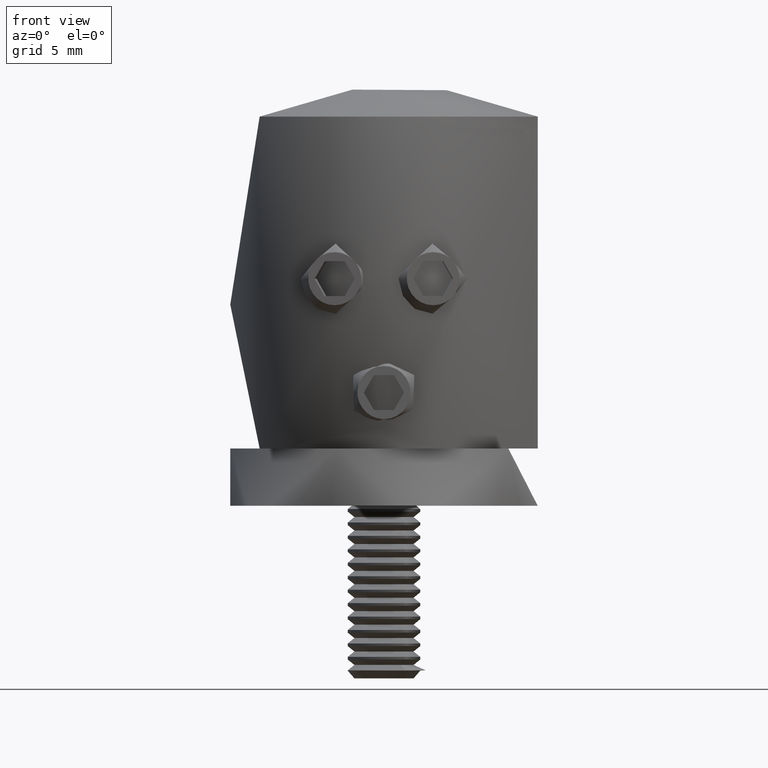
[diagram: clean part render]
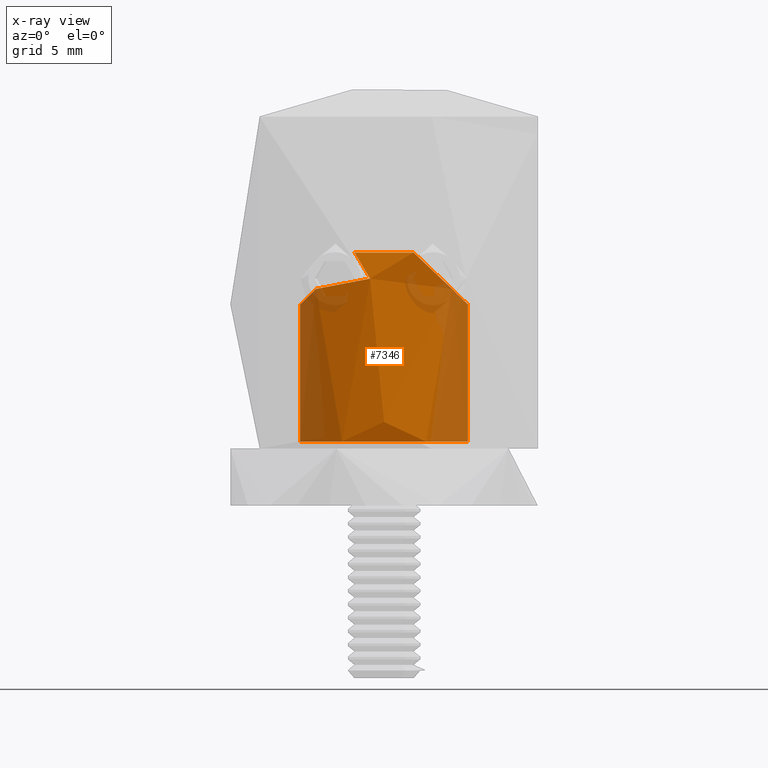
[diagram: x-ray — body ghosted, one internal face saturated and labeled with its STEP entity id]
A machine part, front view, then the same camera in x-ray: the body is ghosted and one INTERNAL B-rep face — a face not visible from any outside direction — is saturated and labeled: STEP entity #7346.
In plain terms, the highlighted cylindrical surface (bore or boss wall) has radius 6 mm, axis along (-0, -0, -1).
Its self-contained STEP definition (entity closure, byte-faithful):
#29 = CARTESIAN_POINT ( 'NONE',  ( -1.273687628927148400, -5.863772781199164000, 11.08677579669841200 ) ) ;
#625 = CARTESIAN_POINT ( 'NONE',  ( 4.867352433396872500, -3.508401386544241600, 11.40989782560572700 ) ) ;
#752 = CARTESIAN_POINT ( 'NONE',  ( 1.055318436482936700, -5.907600806349175400, 2.179273462287427700 ) ) ;
#936 = CARTESIAN_POINT ( 'NONE',  ( -2.086440083120673500, -5.625620362231071400, 3.724349182297993300 ) ) ;
#1004 = AXIS2_PLACEMENT_3D ( 'NONE', #16715, #3881, #3970 ) ;
#1017 = CARTESIAN_POINT ( 'NONE',  ( -1.388843066986826800, -5.837892061353310100, 2.418972633787931100 ) ) ;
#1131 = CARTESIAN_POINT ( 'NONE',  ( -4.867352433396882300, -3.508401386544229200, 11.40989782560571800 ) ) ;
#1174 = CARTESIAN_POINT ( 'NONE',  ( -2.502281604840251200, 5.458489792061498300, 13.66827881113174400 ) ) ;
#1232 = CARTESIAN_POINT ( 'NONE',  ( -2.113891818123934600, -5.615288183278637200, 14.01703155313980200 ) ) ;
#1287 = CARTESIAN_POINT ( 'NONE',  ( 1.388251816607981800, -5.838037281970530400, 5.581575950864485800 ) ) ;
#1375 = VERTEX_POINT ( 'NONE', #625 ) ;
#1636 = CARTESIAN_POINT ( 'NONE',  ( 5.171241224347185500, -3.055739607014682500, 11.11312757424906600 ) ) ;
#1818 = CARTESIAN_POINT ( 'NONE',  ( 5.941086143953244300, -0.8527237309210352600, 10.35793959269304800 ) ) ;
#1862 = CARTESIAN_POINT ( 'NONE',  ( 0.9996496144738772300, -5.916232734022180800, 11.94286512467448000 ) ) ;
#1905 = CARTESIAN_POINT ( 'NONE',  ( -1.167865313318375600, -5.885541250510717900, 13.00342245237259700 ) ) ;
#1991 = CARTESIAN_POINT ( 'NONE',  ( -1.728021608780151700, -5.747671505605956600, 10.53792556424895600 ) ) ;
#2075 = CARTESIAN_POINT ( 'NONE',  ( 0.9764022027134553500, -5.922589790551092500, 14.93394293131817500 ) ) ;
#2078 = CARTESIAN_POINT ( 'NONE',  ( -3.825067181792793900, -4.625897214471373300, 10.21465837091609400 ) ) ;
#2795 = CARTESIAN_POINT ( 'NONE',  ( 1.885684773470323500, -5.696257661656740200, 4.934537723020821600 ) ) ;
#2984 = CARTESIAN_POINT ( 'NONE',  ( 0.5472454995192380700, -5.976522812652007100, 1.967890563847576500 ) ) ;
#3069 = CARTESIAN_POINT ( 'NONE',  ( 1.283385613909028100, -5.862276931221736700, 5.667804354879554500 ) ) ;
#3226 = CARTESIAN_POINT ( 'NONE',  ( -5.167286748895363300, -3.062166583952993500, 11.11699470880214800 ) ) ;
#3251 = CARTESIAN_POINT ( 'NONE',  ( -0.2773106023340089500, -5.995110587510879400, 1.913857049664069200 ) ) ;
#3316 = CARTESIAN_POINT ( 'NONE',  ( -5.614912861048519900, 2.134467214609843100, 10.67839752558750100 ) ) ;
#3396 = CARTESIAN_POINT ( 'NONE',  ( -6.007766669316271900, 0.04580640826745665400, 10.29236098008397500 ) ) ;
#3430 = CARTESIAN_POINT ( 'NONE',  ( 0.2777402781516119000, -5.995120906657181300, 6.086177050655782800 ) ) ;
#3442 = CYLINDRICAL_SURFACE ( 'NONE', #10691, 6.000000000000000900 ) ;
#3493 = CARTESIAN_POINT ( 'NONE',  ( -5.824420193478872900, -1.472320762986534700, 10.47262690189751000 ) ) ;
#3577 = CARTESIAN_POINT ( 'NONE',  ( 5.247862996836683900, 2.921487359160314800, 11.03817719682752200 ) ) ;
#3665 = CARTESIAN_POINT ( 'NONE',  ( 5.709801124999731100, 1.867555025280693600, 10.58522462234058600 ) ) ;
#3881 = DIRECTION ( 'NONE',  ( 0.0000000000000000000, 0.0000000000000000000, -1.000000000000000000 ) ) ;
#3886 = CARTESIAN_POINT ( 'NONE',  ( 1.015730455365762200, -5.913413927067173500, 12.48225639932760000 ) ) ;
#3970 = DIRECTION ( 'NONE',  ( 1.000000000000000000, 0.0000000000000000000, 0.0000000000000000000 ) ) ;
#3974 = CARTESIAN_POINT ( 'NONE',  ( 1.065262837610819500, -5.904771308157386000, 11.58705933422035100 ) ) ;
#4110 = CARTESIAN_POINT ( 'NONE',  ( -4.589527053769453200, -3.866779937412136100, 10.85079736674343600 ) ) ;
#4203 = CARTESIAN_POINT ( 'NONE',  ( -2.161975072810344800, -5.599502737226383300, 10.25056775954835000 ) ) ;
#4289 = CARTESIAN_POINT ( 'NONE',  ( -3.952229512019090200, -4.517304475061483700, 10.27919822502627400 ) ) ;
#4473 = DIRECTION ( 'NONE',  ( -0.0000000000000000000, -0.0000000000000000000, -1.000000000000000000 ) ) ;
#4825 = CARTESIAN_POINT ( 'NONE',  ( 2.100097390676808600, -5.620461810260685800, 4.136718875267625600 ) ) ;
#5036 = ORIENTED_EDGE ( 'NONE', *, *, #6916, .T. ) ;
#5097 = CARTESIAN_POINT ( 'NONE',  ( 1.990963533487665200, -5.660313271408463200, 3.318295880892016200 ) ) ;
#5195 = CARTESIAN_POINT ( 'NONE',  ( 0.5499592264330737100, -5.976299791409975800, 6.031457407392960800 ) ) ;
#5250 = CARTESIAN_POINT ( 'NONE',  ( 0.1654252665690680900, 5.999751105303551500, 15.29864244186377100 ) ) ;
#5277 = CARTESIAN_POINT ( 'NONE',  ( -1.056301083882023900, -5.907416619898390800, 5.820119853568162000 ) ) ;
#5333 = CARTESIAN_POINT ( 'NONE',  ( -5.428965358528476100, -2.569834949775128100, 10.86078007065822100 ) ) ;
#5421 = CARTESIAN_POINT ( 'NONE',  ( -0.5938718101219150300, 5.972342731171290000, 15.15730686294952000 ) ) ;
#5452 = CARTESIAN_POINT ( 'NONE',  ( -0.1399303184415943700, -6.000000000000003600, 1.900000000000007500 ) ) ;
#5516 = CARTESIAN_POINT ( 'NONE',  ( -2.715608712263335900, 5.355579359399967200, 13.47097911774944900 ) ) ;
#5545 = CARTESIAN_POINT ( 'NONE',  ( -2.085970634324527700, -5.625794041661615500, 4.278667550940393300 ) ) ;
#5611 = CARTESIAN_POINT ( 'NONE',  ( -3.922828761886954400, 4.547107862393465500, 12.32614630466403400 ) ) ;
#5773 = FACE_OUTER_BOUND ( 'NONE', #25705, .T. ) ;
#5792 = CARTESIAN_POINT ( 'NONE',  ( 3.740224218944623800, 4.718724442483867200, 12.50253967566992900 ) ) ;
#5823 = CARTESIAN_POINT ( 'NONE',  ( 2.113891818123935000, -5.615288183278637200, 14.01703155313980200 ) ) ;
#5919 = CARTESIAN_POINT ( 'NONE',  ( 2.948008211115543900, -5.228933841009410200, 10.04554099241454100 ) ) ;
#6004 = CARTESIAN_POINT ( 'NONE',  ( 3.959424831206343600, -4.521295955666795800, 10.26370067353234300 ) ) ;
#6102 = CARTESIAN_POINT ( 'NONE',  ( 2.157701651782515800, -5.601162185523904200, 10.25263695343231900 ) ) ;
#6222 = CARTESIAN_POINT ( 'NONE',  ( 0.0000000000000000000, -6.000000000000000900, 1.900000000000006800 ) ) ;
#6244 = CARTESIAN_POINT ( 'NONE',  ( -1.065729928264619300, -5.904687732400111200, 11.58541812102071800 ) ) ;
#6327 = CARTESIAN_POINT ( 'NONE',  ( -1.559361361734893600, -5.795392785747755400, 13.59986148719090000 ) ) ;
#6424 = CARTESIAN_POINT ( 'NONE',  ( -1.963301222332455100, -5.671978457747179900, 13.93724219957108400 ) ) ;
#6692 = VERTEX_POINT ( 'NONE', #1232 ) ;
#6916 = EDGE_CURVE ( 'NONE', #7739, #7739, #10232, .T. ) ;
#7061 = CARTESIAN_POINT ( 'NONE',  ( 0.6812341139050355200, -5.962577447961941800, 2.008811109739972300 ) ) ;
#7248 = EDGE_CURVE ( 'NONE', #8938, #6692, #21468, .T. ) ;
#7346 = ADVANCED_FACE ( 'NONE', ( #25089, #23071, #5773 ), #3442, .F. ) ;
#7402 = CARTESIAN_POINT ( 'NONE',  ( 0.6085788465783628100, 5.970820826429176400, 15.14996537146061900 ) ) ;
#7431 = CARTESIAN_POINT ( 'NONE',  ( 0.1386258689238649400, -5.999981683544565800, 6.099947667266898000 ) ) ;
#7501 = CARTESIAN_POINT ( 'NONE',  ( -3.729517694690468200, 4.706423229901699500, 12.51208905756199400 ) ) ;
#7585 = CARTESIAN_POINT ( 'NONE',  ( -2.062532930482643900, 5.639368931949403100, 14.06442094693516700 ) ) ;
#7610 = CARTESIAN_POINT ( 'NONE',  ( -2.031781744484791200, -5.645590759985886100, 4.548445105721373100 ) ) ;
#7669 = CARTESIAN_POINT ( 'NONE',  ( -5.871928728444297400, 1.269909211819847400, 10.42594533236296600 ) ) ;
#7739 = VERTEX_POINT ( 'NONE', #6222 ) ;
#7766 = CARTESIAN_POINT ( 'NONE',  ( -5.023148013582693100, -3.292259641976961900, 11.25793460524902700 ) ) ;
#7877 = EDGE_CURVE ( 'NONE', #20018, #6692, #20620, .T. ) ;
#7943 = CARTESIAN_POINT ( 'NONE',  ( 5.551200053611353300, -2.295863394953066000, 10.74089553869716200 ) ) ;
#7980 = CARTESIAN_POINT ( 'NONE',  ( 1.368459074015935000, -5.843014417297395900, 10.93740862132601400 ) ) ;
#8072 = CARTESIAN_POINT ( 'NONE',  ( 1.821216476727798500, -5.718559615694504200, 13.83816000703656500 ) ) ;
#8129 = CARTESIAN_POINT ( 'NONE',  ( 4.867352433396872500, -3.508401386544241600, 11.40989782560572700 ) ) ;
#8170 = CARTESIAN_POINT ( 'NONE',  ( 1.558415985833064600, -5.795696088344937100, 13.59916312921229100 ) ) ;
#8302 = CARTESIAN_POINT ( 'NONE',  ( -1.016067671279336400, -5.913356428406748600, 12.48454089163752900 ) ) ;
#8927 = CARTESIAN_POINT ( 'NONE',  ( -5.421010862427522200E-017, -6.000000000000001800, 1.900000000000007200 ) ) ;
#8938 = VERTEX_POINT ( 'NONE', #1131 ) ;
#9396 = CARTESIAN_POINT ( 'NONE',  ( -0.9349122421464504100, -5.928103206872799900, 2.114551264284959300 ) ) ;
#9552 = CARTESIAN_POINT ( 'NONE',  ( -5.547154864501681700, -2.305190043185515200, 10.74486325882744000 ) ) ;
#9634 = CARTESIAN_POINT ( 'NONE',  ( -5.980725991670747800, -0.5712050354644056000, 10.31895753738725800 ) ) ;
#9658 = CARTESIAN_POINT ( 'NONE',  ( -0.1370357647622484900, -6.000018211104130500, 6.100052031729359400 ) ) ;
#9720 = CARTESIAN_POINT ( 'NONE',  ( -3.334412953283265100, 4.994137774525694500, 12.88932214460752400 ) ) ;
#9750 = CARTESIAN_POINT ( 'NONE',  ( -1.281623710314719200, -5.862660541099056200, 2.330856865501477400 ) ) ;
#9814 = CARTESIAN_POINT ( 'NONE',  ( -0.06878034496798497700, 6.000113663527448800, 15.30061995931117200 ) ) ;
#9904 = CARTESIAN_POINT ( 'NONE',  ( -5.943013178876668700, -0.8787453413953009200, 10.35605369826911800 ) ) ;
#10221 = CARTESIAN_POINT ( 'NONE',  ( 0.9898222461646819500, -5.917805721024223900, 12.12394212758456500 ) ) ;
#10232 = B_SPLINE_CURVE_WITH_KNOTS ( 'NONE', 3,
 ( #8927, #22041, #15713, #2984, #7061, #24096, #752, #11169, #19725, #15529, #23814, #5097, #15619, #24194, #13278, #4825, #11444, #21864, #23996, #2795, #11068, #25950, #13185, #1287, #3069, #20356, #16156, #20452, #5195, #3430, #7431, #9658, #26520, #18220, #11623, #17956, #5277, #18310, #20188, #26689, #20097, #26426, #7610, #5545, #22139, #24369, #936, #13652, #22488, #13746, #26783, #1017, #9750, #14008, #9396, #11794, #24465, #3251, #5452, #24283 ),
 .UNSPECIFIED., .T., .F.,
 ( 4, 2, 2, 2, 2, 2, 2, 2, 2, 2, 2, 2, 2, 2, 2, 2, 2, 2, 2, 2, 2, 2, 2, 2, 2, 2, 2, 2, 2, 4 ),
 ( 0.0000000000000000000, 0.0004135997285890928200, 0.0008271994571781854200, 0.001240799185767278200, 0.001654398914356370600, 0.002481598371534556400, 0.002895198100123648800, 0.003308797828712741300, 0.003722397557301833300, 0.004135997285890926100, 0.004549597014480017700, 0.004963196743069110200, 0.005376796471658201700, 0.005790396200247294200, 0.006203995928836386600, 0.006617595657425478200, 0.007031195386014570600, 0.007444795114603662200, 0.007858394843192756400, 0.008271994571781848800, 0.009099194028960033700, 0.009512793757549127900, 0.009926393486138223800, 0.01033999321472731600, 0.01075359294331641200, 0.01158079240049460000, 0.01199439212908369600, 0.01240799185767279400, 0.01282159158626188800, 0.01323519131485098400 ),
 .UNSPECIFIED. ) ;
#10273 = EDGE_LOOP ( 'NONE', ( #5036 ) ) ;
#10310 = CARTESIAN_POINT ( 'NONE',  ( 1.052194865084752600, -5.907309789545577900, 12.66220004238179400 ) ) ;
#10446 = CARTESIAN_POINT ( 'NONE',  ( -0.8107541114038041600, -5.948034349896200700, 15.04353885490867500 ) ) ;
#10497 = CARTESIAN_POINT ( 'NONE',  ( 2.470280173078289300, -5.470503643463204400, 10.12825927991102400 ) ) ;
#10573 = ORIENTED_EDGE ( 'NONE', *, *, #12771, .T. ) ;
#10691 = AXIS2_PLACEMENT_3D ( 'NONE', #15081, #4473, #17147 ) ;
#10718 = CARTESIAN_POINT ( 'NONE',  ( -2.113891818123934600, -5.615288183278637200, 14.01703155313980200 ) ) ;
#11068 = CARTESIAN_POINT ( 'NONE',  ( 1.820638573103270200, -5.717652440165352300, 5.055379003986187700 ) ) ;
#11169 = CARTESIAN_POINT ( 'NONE',  ( 1.282773082496065000, -5.862417377531365900, 2.331696866173552900 ) ) ;
#11444 = CARTESIAN_POINT ( 'NONE',  ( 2.086195265504057000, -5.625710555255438700, 4.277106224398222500 ) ) ;
#11596 = CARTESIAN_POINT ( 'NONE',  ( -3.131703652343030600, 5.123396645473863300, 13.08153643734966600 ) ) ;
#11623 = CARTESIAN_POINT ( 'NONE',  ( -0.6799031944775879600, -5.962726470154970900, 5.991631115680869300 ) ) ;
#11677 = CARTESIAN_POINT ( 'NONE',  ( -0.1475560798597540200, 5.998668804433220800, 15.29265606429402500 ) ) ;
#11726 = EDGE_CURVE ( 'NONE', #8938, #1375, #17903, .T. ) ;
#11794 = CARTESIAN_POINT ( 'NONE',  ( -0.6805891605157771100, -5.962656029525707200, 2.008574322222096000 ) ) ;
#11857 = CARTESIAN_POINT ( 'NONE',  ( 2.719334512010128000, 5.353746618275196500, 13.46753091479247100 ) ) ;
#12028 = CARTESIAN_POINT ( 'NONE',  ( 5.867320275194417800, 1.290016840119474000, 10.43047480805269000 ) ) ;
#12167 = CARTESIAN_POINT ( 'NONE',  ( 1.963138673634825500, -5.672039649684394100, 13.93715607430250700 ) ) ;
#12214 = CARTESIAN_POINT ( 'NONE',  ( 4.803616095281046100, 3.604722715197932200, 11.47219594789762800 ) ) ;
#12303 = CARTESIAN_POINT ( 'NONE',  ( 4.292914315752991400, 4.199380438900682600, 11.96865220668319400 ) ) ;
#12332 = CARTESIAN_POINT ( 'NONE',  ( 3.550931751642631500, -4.839491112023222500, 10.11426778605473900 ) ) ;
#12376 = CARTESIAN_POINT ( 'NONE',  ( 0.4107333692984690400, -5.986808937702580400, 15.22999402726550100 ) ) ;
#12483 = CARTESIAN_POINT ( 'NONE',  ( -0.9897773490152483900, -5.917813663961949200, 12.12567396715467900 ) ) ;
#12652 = CARTESIAN_POINT ( 'NONE',  ( -2.631461423441610900, -5.395133144000613600, 10.08705352124343300 ) ) ;
#12747 = CARTESIAN_POINT ( 'NONE',  ( -4.747180099970179000, -3.671515594424438400, 11.11045017589024500 ) ) ;
#12771 = EDGE_CURVE ( 'NONE', #20018, #1375, #17378, .T. ) ;
#13185 = CARTESIAN_POINT ( 'NONE',  ( 1.581278183707604900, -5.788737489101017700, 5.388590976637336100 ) ) ;
#13278 = CARTESIAN_POINT ( 'NONE',  ( 2.099901555218821200, -5.620534980703876500, 3.860305477660864500 ) ) ;
#13652 = CARTESIAN_POINT ( 'NONE',  ( -2.032103204105485200, -5.645475466979344300, 3.452485469036112400 ) ) ;
#13715 = CARTESIAN_POINT ( 'NONE',  ( -1.835604237810706300, 5.717506295038042200, 14.26416947901370600 ) ) ;
#13718 = ORIENTED_EDGE ( 'NONE', *, *, #7877, .F. ) ;
#13746 = CARTESIAN_POINT ( 'NONE',  ( -1.833295944888411600, -5.714140928245533300, 2.939791683323970800 ) ) ;
#13897 = CARTESIAN_POINT ( 'NONE',  ( -5.744345981486620000, -1.757076398721709500, 10.55131166622664200 ) ) ;
#13983 = CARTESIAN_POINT ( 'NONE',  ( -0.3742279772383637100, 5.988768135218638400, 15.24006586158862200 ) ) ;
#14008 = CARTESIAN_POINT ( 'NONE',  ( -1.054979748196500600, -5.907653145361193100, 2.179116733785587000 ) ) ;
#14075 = CARTESIAN_POINT ( 'NONE',  ( -5.928877749803342000, 0.9708895376434503200, 10.36994583881917400 ) ) ;
#14174 = CARTESIAN_POINT ( 'NONE',  ( 5.434683667475770400, -2.558025367493085500, 10.85517621458484100 ) ) ;
#14264 = CARTESIAN_POINT ( 'NONE',  ( 5.749431440263746800, -1.740933335084042600, 10.54631712893359300 ) ) ;
#14350 = CARTESIAN_POINT ( 'NONE',  ( 5.830234072905751600, -1.449169544467736600, 10.46691350662779000 ) ) ;
#14390 = CARTESIAN_POINT ( 'NONE',  ( 3.404905387312053400, -4.943556201823896300, 10.07913213844010500 ) ) ;
#14491 = CARTESIAN_POINT ( 'NONE',  ( 4.867352433396872500, -3.508401386544241600, 11.40989782560572700 ) ) ;
#14530 = CARTESIAN_POINT ( 'NONE',  ( -2.113891818123934600, -5.615288183278637200, 14.01703155313980200 ) ) ;
#14538 = CARTESIAN_POINT ( 'NONE',  ( 3.346569586699718700, 5.002999516788536400, 12.88035413875520500 ) ) ;
#14575 = CARTESIAN_POINT ( 'NONE',  ( 1.271779074911123700, -5.864178374686136200, 11.09026145185682200 ) ) ;
#14656 = CARTESIAN_POINT ( 'NONE',  ( 2.005322469550398600, -5.656893044782796300, 10.33631424745069600 ) ) ;
#14703 = CARTESIAN_POINT ( 'NONE',  ( 0.7983218766900320700, -5.949766816213366600, 15.05121956207199900 ) ) ;
#14809 = CARTESIAN_POINT ( 'NONE',  ( -1.051498570073583700, -5.907440728322941800, 12.66013789724735800 ) ) ;
#14888 = CARTESIAN_POINT ( 'NONE',  ( 1.490075256485623200, -5.822490883155095000, 14.56310791316861900 ) ) ;
#15081 = CARTESIAN_POINT ( 'NONE',  ( 0.0000000000000000000, 0.0000000000000000000, 16.39999999999999900 ) ) ;
#15529 = CARTESIAN_POINT ( 'NONE',  ( 1.677500159237451200, -5.764135783203782300, 2.707802910303008600 ) ) ;
#15619 = CARTESIAN_POINT ( 'NONE',  ( 2.031893931028322200, -5.645550960297868800, 3.451744546214746900 ) ) ;
#15713 = CARTESIAN_POINT ( 'NONE',  ( 0.2773110508732141700, -5.995114773543329000, 1.913844450117064800 ) ) ;
#15872 = CARTESIAN_POINT ( 'NONE',  ( -0.7299336915313289200, 5.956905625944996200, 15.08388537916767200 ) ) ;
#16034 = CARTESIAN_POINT ( 'NONE',  ( -4.867352433396882300, -3.508401386544229200, 11.40989782560571800 ) ) ;
#16128 = CARTESIAN_POINT ( 'NONE',  ( -5.384272730743789200, 2.663231850286636800, 10.90455813632185100 ) ) ;
#16156 = CARTESIAN_POINT ( 'NONE',  ( 0.9337857770029868200, -5.928263369488840700, 5.885943294885849200 ) ) ;
#16397 = CARTESIAN_POINT ( 'NONE',  ( 5.976964298272593000, -0.5473025747463038400, 10.32265752005877200 ) ) ;
#16542 = CARTESIAN_POINT ( 'NONE',  ( 4.814326353859881300, -3.581966691317782600, 11.25260326226228500 ) ) ;
#16590 = CARTESIAN_POINT ( 'NONE',  ( 5.023825250908378900, -3.291320082222535200, 11.25727402704241000 ) ) ;
#16626 = CARTESIAN_POINT ( 'NONE',  ( 1.724931855367855200, -5.748596978509878500, 10.54057491809329900 ) ) ;
#16667 = CARTESIAN_POINT ( 'NONE',  ( -1.497742597307091900, -5.820339371575646400, 14.55645797503656900 ) ) ;
#16671 = CARTESIAN_POINT ( 'NONE',  ( -2.473768912098433400, -5.468915293656901400, 10.12724914331903900 ) ) ;
#16715 = CARTESIAN_POINT ( 'NONE',  ( 0.0000000000000000000, 0.0000000000000000000, 0.5000000000000073300 ) ) ;
#16719 = CARTESIAN_POINT ( 'NONE',  ( 1.593628327054531700, -5.785658689657656100, 10.66394320091266200 ) ) ;
#16862 = CARTESIAN_POINT ( 'NONE',  ( -4.867352433396882300, -3.508401386544229200, 11.40989782560571800 ) ) ;
#16957 = CARTESIAN_POINT ( 'NONE',  ( -1.370049457579461500, -5.842655812519130800, 10.93501073409079700 ) ) ;
#17039 = CARTESIAN_POINT ( 'NONE',  ( 0.2052556779809838700, -5.997370529145861400, 15.28539604839988900 ) ) ;
#17123 = CARTESIAN_POINT ( 'NONE',  ( 6.000000000000000900, 0.0000000000000000000, 0.5000000000000073300 ) ) ;
#17147 = DIRECTION ( 'NONE',  ( -1.000000000000000000, 0.0000000000000000000, 0.0000000000000000000 ) ) ;
#17378 = B_SPLINE_CURVE_WITH_KNOTS ( 'NONE', 3,
 ( #26884, #12167, #8072, #8170, #18959, #22940, #23036, #10310, #3886, #10221, #1862, #3974, #25104, #14575, #7980, #16719, #16626, #14656, #6102, #10497, #27441, #5919, #18873, #14390, #12332, #6004, #20992, #27253, #25374, #25001, #16542, #14491 ),
 .UNSPECIFIED., .F., .F.,
 ( 4, 2, 2, 2, 2, 2, 2, 2, 2, 2, 2, 2, 2, 2, 2, 4 ),
 ( 0.004769255954720246500, 0.005305575705321788700, 0.005841895455923330100, 0.006378215206524871400, 0.006914534957126413700, 0.007450854707727955900, 0.007987174458329497300, 0.008523494208931038700, 0.009059813959532581800, 0.009596133710134123100, 0.01013245346073566400, 0.01066877321133720600, 0.01120509296193874700, 0.01227773246314183000, 0.01281405221374337700, 0.01335037196434492000 ),
 .UNSPECIFIED. ) ;
#17903 = B_SPLINE_CURVE_WITH_KNOTS ( 'NONE', 3,
 ( #16034, #7766, #3226, #5333, #9552, #13897, #3493, #9904, #9634, #3396, #26752, #14075, #7669, #18282, #3316, #16128, #18371, #20246, #26850, #5611, #7501, #9720, #11596, #5516, #1174, #7585, #13715, #18010, #20419, #15872, #5421, #13983, #22546, #11677, #9814, #5250, #20164, #7402, #22284, #22368, #24434, #22458, #26580, #24608, #11857, #14538, #5792, #12303, #20785, #12214, #20687, #3577, #25060, #27217, #3665, #12028, #20876, #27124, #20600, #24963, #16397, #1818, #22905, #14350, #14264, #7943, #14174, #1636, #16590, #8129 ),
 .UNSPECIFIED., .F., .F.,
 ( 4, 2, 2, 2, 2, 2, 2, 2, 2, 2, 2, 2, 2, 2, 2, 2, 2, 2, 2, 2, 2, 2, 2, 2, 2, 2, 2, 2, 2, 2, 2, 2, 2, 2, 4 ),
 ( 0.03959294493710817400, 0.04051882985648759500, 0.04144471477586701000, 0.04237059969524643200, 0.04329648461462585300, 0.04422236953400526800, 0.04514825445338469000, 0.04607413937276410400, 0.04700002429214352600, 0.04885179413090236200, 0.04977767905028178400, 0.05070356396966120600, 0.05162944888904062700, 0.05255533380842004900, 0.05348121872779947100, 0.05394416118748918100, 0.05417563241733403700, 0.05440710364717889200, 0.05487004610686860300, 0.05533298856655831400, 0.05625887348593774200, 0.05718475840531716400, 0.05811064332469658600, 0.05996241316345542200, 0.06088829808283485100, 0.06181418300221427200, 0.06274006792159370100, 0.06366595284097312200, 0.06459183776035254400, 0.06551772267973196600, 0.06598066513942167600, 0.06644360759911138700, 0.06736949251849080900, 0.06829537743787023100, 0.06922126235724965200 ),
 .UNSPECIFIED. ) ;
#17956 = CARTESIAN_POINT ( 'NONE',  ( -0.9335114993840605300, -5.928316084038139700, 5.886112174640410400 ) ) ;
#18010 = CARTESIAN_POINT ( 'NONE',  ( -1.366144347021675200, 5.847475589925021000, 14.65109191968039100 ) ) ;
#18220 = CARTESIAN_POINT ( 'NONE',  ( -0.5485102145950172500, -5.976435261253112900, 6.031854882297268200 ) ) ;
#18282 = CARTESIAN_POINT ( 'NONE',  ( -5.713706261475174100, 1.856280462584725800, 10.58139007817099200 ) ) ;
#18310 = CARTESIAN_POINT ( 'NONE',  ( -1.282893921177701100, -5.862382304820062700, 5.668170089699676100 ) ) ;
#18371 = CARTESIAN_POINT ( 'NONE',  ( -5.251069111691464300, 2.915976069695571700, 11.03504065027934700 ) ) ;
#18420 = CIRCLE ( 'NONE', #1004, 6.000000000000000900 ) ;
#18831 = CARTESIAN_POINT ( 'NONE',  ( -2.948452776556354800, -5.228640080266798900, 10.04561504913772300 ) ) ;
#18873 = CARTESIAN_POINT ( 'NONE',  ( 3.103728140872410400, -5.137995741988779800, 10.04500315251031700 ) ) ;
#18959 = CARTESIAN_POINT ( 'NONE',  ( 1.443164559754133400, -5.824721992882019500, 13.46417698154186100 ) ) ;
#19001 = CARTESIAN_POINT ( 'NONE',  ( -4.500326352497214800, -3.970965435608219400, 10.73538939682056500 ) ) ;
#19103 = CARTESIAN_POINT ( 'NONE',  ( -1.120480108792501800, -5.894966983063990400, 11.41456783409853200 ) ) ;
#19196 = CARTESIAN_POINT ( 'NONE',  ( -3.551545934452504200, -4.839068656214355900, 10.11438567444215800 ) ) ;
#19725 = CARTESIAN_POINT ( 'NONE',  ( 1.389511688007988100, -5.837728522015407200, 2.419587935187493200 ) ) ;
#20018 = VERTEX_POINT ( 'NONE', #5823 ) ;
#20097 = CARTESIAN_POINT ( 'NONE',  ( -1.832704397464457200, -5.714346342055216100, 5.061775951773686400 ) ) ;
#20164 = CARTESIAN_POINT ( 'NONE',  ( 0.3191405995999965200, 5.993264455328998400, 15.26242842758884800 ) ) ;
#20188 = CARTESIAN_POINT ( 'NONE',  ( -1.388036528353558100, -5.838097357248577700, 5.581828602384570500 ) ) ;
#20246 = CARTESIAN_POINT ( 'NONE',  ( -4.814822656177752500, 3.622713873430663000, 11.46150172177593700 ) ) ;
#20356 = CARTESIAN_POINT ( 'NONE',  ( 1.056572057962529300, -5.907370391185574800, 5.819974034561118600 ) ) ;
#20419 = CARTESIAN_POINT ( 'NONE',  ( -1.123001581859916400, 5.899913454359394300, 14.84161925146512000 ) ) ;
#20452 = CARTESIAN_POINT ( 'NONE',  ( 0.6810570200218701900, -5.962585327761368100, 5.991205495255797200 ) ) ;
#20600 = CARTESIAN_POINT ( 'NONE',  ( 6.007565312277857400, 0.07353493240451376700, 10.29255895544101300 ) ) ;
#20620 = B_SPLINE_CURVE_WITH_KNOTS ( 'NONE', 3,
 ( #23173, #27494, #14888, #2075, #14703, #20954, #12376, #17039, #21138, #27298, #22983, #10446, #20869, #16667, #23080, #14530 ),
 .UNSPECIFIED., .F., .F.,
 ( 4, 2, 2, 2, 2, 2, 2, 4 ),
 ( 0.03006181510081091700, 0.03133946049984054300, 0.03197828319935536200, 0.03229769454911277100, 0.03261710589887017300, 0.03325592859838499100, 0.03389475129789980300, 0.03517239669692943200 ),
 .UNSPECIFIED. ) ;
#20687 = CARTESIAN_POINT ( 'NONE',  ( 4.959585189190421200, 3.387870891055949900, 11.31998395791021000 ) ) ;
#20785 = CARTESIAN_POINT ( 'NONE',  ( 4.470840257424336900, 4.010030029426334700, 11.79598677320758100 ) ) ;
#20869 = CARTESIAN_POINT ( 'NONE',  ( -0.9887902842387870100, -5.920488965940268000, 14.92553067047513000 ) ) ;
#20876 = CARTESIAN_POINT ( 'NONE',  ( 5.926197198989953600, 0.9865895939771549500, 10.37258152743970800 ) ) ;
#20954 = CARTESIAN_POINT ( 'NONE',  ( 0.5111039611183880700, -5.978965921249092700, 15.18995869004206200 ) ) ;
#20958 = CARTESIAN_POINT ( 'NONE',  ( -4.814779719844674200, -3.581337717666443600, 11.25394811002887400 ) ) ;
#20992 = CARTESIAN_POINT ( 'NONE',  ( 4.200463648439217000, -4.294401164751103100, 10.42338562087241600 ) ) ;
#21044 = CARTESIAN_POINT ( 'NONE',  ( -3.406037839120042800, -4.942747969949540900, 10.07940842651551200 ) ) ;
#21138 = CARTESIAN_POINT ( 'NONE',  ( 0.09802686335775023800, -6.000153073073073000, 15.30083491478266700 ) ) ;
#21143 = CARTESIAN_POINT ( 'NONE',  ( -0.9998698994396586500, -5.916196217279291700, 11.94078813470129100 ) ) ;
#21224 = CARTESIAN_POINT ( 'NONE',  ( -1.818164378391216000, -5.719481068306645700, 13.83554443865573300 ) ) ;
#21468 = B_SPLINE_CURVE_WITH_KNOTS ( 'NONE', 3,
 ( #16862, #20958, #12747, #4110, #19001, #23086, #25327, #4289, #2078, #19196, #21044, #23351, #18831, #12652, #16671, #4203, #27497, #1991, #25244, #16957, #29, #19103, #6244, #21143, #12483, #8302, #14809, #1905, #27304, #27393, #6327, #21224, #6424, #10718 ),
 .UNSPECIFIED., .F., .F.,
 ( 4, 2, 2, 2, 2, 2, 2, 2, 2, 2, 2, 2, 2, 2, 2, 2, 4 ),
 ( 0.007848260403317316300, 0.008385657466071946100, 0.008923054528826577700, 0.009460451591581207600, 0.009997848654335839100, 0.01053524571709046900, 0.01107264277984509900, 0.01161003984259972900, 0.01214743690535436000, 0.01268483396810899200, 0.01322223103086362200, 0.01375962809361825300, 0.01429702515637288500, 0.01483442221912751600, 0.01537181928188214800, 0.01590921634463678100, 0.01644661340739141100 ),
 .UNSPECIFIED. ) ;
#21864 = CARTESIAN_POINT ( 'NONE',  ( 2.032077313730785000, -5.645484189008472600, 4.547412400692979700 ) ) ;
#22041 = CARTESIAN_POINT ( 'NONE',  ( 0.1399303184415932900, -6.000000000000000900, 1.900000000000006800 ) ) ;
#22064 = ORIENTED_EDGE ( 'NONE', *, *, #26331, .T. ) ;
#22139 = CARTESIAN_POINT ( 'NONE',  ( -2.100005955277873600, -5.620495973474043600, 4.138307198453890800 ) ) ;
#22284 = CARTESIAN_POINT ( 'NONE',  ( 0.7440353898557694500, 5.955166589843862800, 15.07597486295756400 ) ) ;
#22368 = CARTESIAN_POINT ( 'NONE',  ( 1.137747901786239700, 5.897111225725909700, 14.83083273782916600 ) ) ;
#22458 = CARTESIAN_POINT ( 'NONE',  ( 1.842330418937118100, 5.715236483454212600, 14.25826665772458300 ) ) ;
#22488 = CARTESIAN_POINT ( 'NONE',  ( -1.991246174694209200, -5.660214997163486700, 3.319050225171499900 ) ) ;
#22546 = CARTESIAN_POINT ( 'NONE',  ( -0.2997685907485989100, 5.992990823786103100, 15.26232737431165100 ) ) ;
#22905 = CARTESIAN_POINT ( 'NONE',  ( 5.917452624819886400, -1.003336863363066600, 10.38117809989123200 ) ) ;
#22940 = CARTESIAN_POINT ( 'NONE',  ( 1.247184331437614100, -5.869807619020433800, 13.16540089477527400 ) ) ;
#22983 = CARTESIAN_POINT ( 'NONE',  ( -0.4310453628605292500, -5.987539958268316200, 15.23018603452179500 ) ) ;
#23036 = CARTESIAN_POINT ( 'NONE',  ( 1.167188729265689700, -5.885668479794532900, 13.00141845363517100 ) ) ;
#23071 = FACE_OUTER_BOUND ( 'NONE', #26030, .T. ) ;
#23080 = CARTESIAN_POINT ( 'NONE',  ( -1.809747170937403100, -5.729784333828546600, 14.28683322930590000 ) ) ;
#23086 = CARTESIAN_POINT ( 'NONE',  ( -4.300966145746766500, -4.186071425921478600, 10.52774388477926900 ) ) ;
#23173 = CARTESIAN_POINT ( 'NONE',  ( 2.113891818123935000, -5.615288183278637200, 14.01703155313980200 ) ) ;
#23351 = CARTESIAN_POINT ( 'NONE',  ( -3.106233299450279300, -5.136454608515882600, 10.04514085766590400 ) ) ;
#23814 = CARTESIAN_POINT ( 'NONE',  ( 1.833344241584947000, -5.714120875558134700, 2.940059396667278300 ) ) ;
#23996 = CARTESIAN_POINT ( 'NONE',  ( 1.992054000542895300, -5.659936331073166300, 4.678887825467367800 ) ) ;
#24096 = CARTESIAN_POINT ( 'NONE',  ( 0.9351004188317552100, -5.928068568057646800, 2.114661748824999200 ) ) ;
#24194 = CARTESIAN_POINT ( 'NONE',  ( 2.086293483836122700, -5.625674900985020000, 3.723311567177205000 ) ) ;
#24283 = CARTESIAN_POINT ( 'NONE',  ( -5.421010862427522200E-017, -6.000000000000001800, 1.900000000000007200 ) ) ;
#24369 = CARTESIAN_POINT ( 'NONE',  ( -2.099994040831215400, -5.620500425096848200, 3.861512015611140700 ) ) ;
#24394 = ORIENTED_EDGE ( 'NONE', *, *, #7248, .T. ) ;
#24434 = CARTESIAN_POINT ( 'NONE',  ( 1.377896118234319900, 5.844613906983236800, 14.64175142556053000 ) ) ;
#24465 = CARTESIAN_POINT ( 'NONE',  ( -0.5468734143387938800, -5.976552651432204900, 1.967803393346849300 ) ) ;
#24608 = CARTESIAN_POINT ( 'NONE',  ( 2.504285056064436100, 5.457536945029211500, 13.66642863864827700 ) ) ;
#24963 = CARTESIAN_POINT ( 'NONE',  ( 5.989225268996373000, -0.3914623469854135500, 10.31059788602734700 ) ) ;
#25001 = CARTESIAN_POINT ( 'NONE',  ( 4.747221050811990800, -3.671449222973531200, 11.11059796539816200 ) ) ;
#25060 = CARTESIAN_POINT ( 'NONE',  ( 5.381106281907885400, 2.669520145615014200, 10.90766051829903200 ) ) ;
#25089 = FACE_BOUND ( 'NONE', #10273, .T. ) ;
#25104 = CARTESIAN_POINT ( 'NONE',  ( 1.119840924768651600, -5.895079840742752700, 11.41654323264695100 ) ) ;
#25244 = CARTESIAN_POINT ( 'NONE',  ( -1.596566167716157800, -5.784862913836548200, 10.66085103995324500 ) ) ;
#25327 = CARTESIAN_POINT ( 'NONE',  ( -4.189847097206134100, -4.297829584583187300, 10.43526466666091300 ) ) ;
#25374 = CARTESIAN_POINT ( 'NONE',  ( 4.590077462672018900, -3.866113809604659200, 10.85162384185749000 ) ) ;
#25671 = VERTEX_POINT ( 'NONE', #17123 ) ;
#25705 = EDGE_LOOP ( 'NONE', ( #27087, #24394, #13718, #10573 ) ) ;
#25950 = CARTESIAN_POINT ( 'NONE',  ( 1.669065092636238500, -5.763722404570113900, 5.281706429908801700 ) ) ;
#26030 = EDGE_LOOP ( 'NONE', ( #22064 ) ) ;
#26331 = EDGE_CURVE ( 'NONE', #25671, #25671, #18420, .T. ) ;
#26426 = CARTESIAN_POINT ( 'NONE',  ( -1.991790499454957100, -5.660027428170497600, 4.679568982034624000 ) ) ;
#26520 = CARTESIAN_POINT ( 'NONE',  ( -0.2760850920997860400, -5.995199655506469000, 6.086402343784770100 ) ) ;
#26580 = CARTESIAN_POINT ( 'NONE',  ( 2.066071592558968600, 5.638040557038171300, 14.06127800473125900 ) ) ;
#26689 = CARTESIAN_POINT ( 'NONE',  ( -1.679082131009260700, -5.763747723864387500, 5.290733017625370800 ) ) ;
#26752 = CARTESIAN_POINT ( 'NONE',  ( -5.997003725890444900, 0.3607827297346144500, 10.30295026238058000 ) ) ;
#26783 = CARTESIAN_POINT ( 'NONE',  ( -1.677594955765174600, -5.764126152619212500, 2.707790437232916700 ) ) ;
#26850 = CARTESIAN_POINT ( 'NONE',  ( -4.479294778587414400, 4.024303656016791700, 11.78861458375665100 ) ) ;
#26884 = CARTESIAN_POINT ( 'NONE',  ( 2.113891818123935000, -5.615288183278637200, 14.01703155313980200 ) ) ;
#27087 = ORIENTED_EDGE ( 'NONE', *, *, #11726, .F. ) ;
#27124 = CARTESIAN_POINT ( 'NONE',  ( 5.995724491412738100, 0.3800790593203394200, 10.30420863390394200 ) ) ;
#27217 = CARTESIAN_POINT ( 'NONE',  ( 5.611678859135454700, 2.142825939493244300, 10.68157121377466700 ) ) ;
#27253 = CARTESIAN_POINT ( 'NONE',  ( 4.499170958528456100, -3.972266952554028800, 10.73402671318223900 ) ) ;
#27298 = CARTESIAN_POINT ( 'NONE',  ( -0.2229330508283397200, -5.999673784451981200, 15.29822070284656000 ) ) ;
#27304 = CARTESIAN_POINT ( 'NONE',  ( -1.246496548196314400, -5.869948466894112600, 13.16407594904512000 ) ) ;
#27393 = CARTESIAN_POINT ( 'NONE',  ( -1.441886455498719000, -5.825033227210569800, 13.46250212404050700 ) ) ;
#27441 = CARTESIAN_POINT ( 'NONE',  ( 2.628746207652203000, -5.396498392681339200, 10.08754195273732400 ) ) ;
#27494 = CARTESIAN_POINT ( 'NONE',  ( 1.807922893069333200, -5.730471088618937600, 14.28845151597031900 ) ) ;
#27497 = CARTESIAN_POINT ( 'NONE',  ( -2.008550017474881600, -5.655750458079587900, 10.33437061734976000 ) ) ;